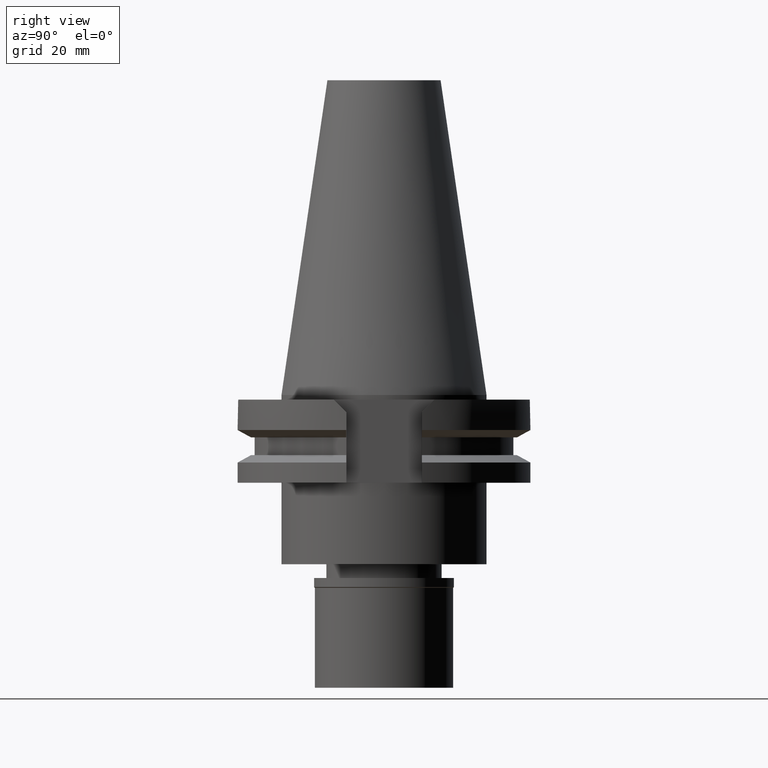
[diagram: clean part render]
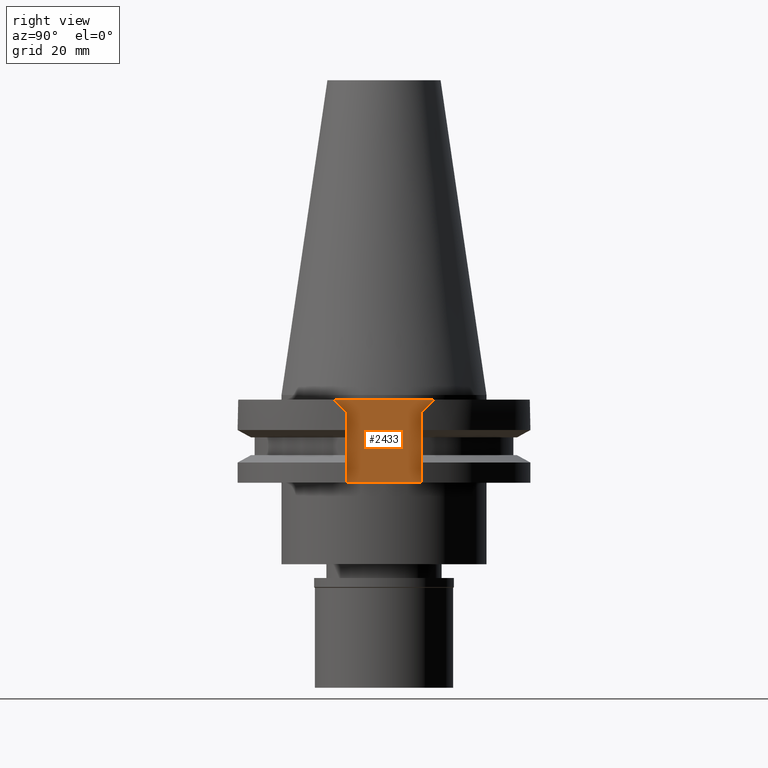
[diagram: same view with one face highlighted and labeled with its STEP entity id]
A machine part, right view. The second image highlights one B-rep face of the part: STEP entity #2433.
In plain terms, the highlighted planar face has unit normal (1, 0, 0).
Its self-contained STEP definition (entity closure, byte-faithful):
#55 = VERTEX_POINT ( 'NONE', #3035 ) ;
#57 = LINE ( 'NONE', #1242, #901 ) ;
#147 = VECTOR ( 'NONE', #952, 1000.000000000000000 ) ;
#253 = ORIENTED_EDGE ( 'NONE', *, *, #2285, .F. ) ;
#254 = EDGE_CURVE ( 'NONE', #970, #1608, #1385, .T. ) ;
#564 = EDGE_LOOP ( 'NONE', ( #1541, #1530, #1957, #253, #2066, #1280 ) ) ;
#637 = LINE ( 'NONE', #2581, #1485 ) ;
#702 = VERTEX_POINT ( 'NONE', #3116 ) ;
#799 = LINE ( 'NONE', #1304, #1479 ) ;
#825 = VERTEX_POINT ( 'NONE', #1554 ) ;
#901 = VECTOR ( 'NONE', #2189, 1000.000000000000114 ) ;
#929 = AXIS2_PLACEMENT_3D ( 'NONE', #2748, #1329, #1558 ) ;
#931 = DIRECTION ( 'NONE',  ( 0.0000000000000000000, -1.000000000000000000, 0.0000000000000000000 ) ) ;
#952 = DIRECTION ( 'NONE',  ( 0.0000000000000000000, -1.000000000000000000, 0.0000000000000000000 ) ) ;
#970 = VERTEX_POINT ( 'NONE', #2568 ) ;
#1242 = CARTESIAN_POINT ( 'NONE',  ( 22.57000000000000028, 10.89000000000000057, -1.000000000000000000 ) ) ;
#1280 = ORIENTED_EDGE ( 'NONE', *, *, #254, .F. ) ;
#1304 = CARTESIAN_POINT ( 'NONE',  ( 22.57000000000000028, -8.189999999999999503, -3.700000000000000178 ) ) ;
#1329 = DIRECTION ( 'NONE',  ( 1.000000000000000000, 0.0000000000000000000, 0.0000000000000000000 ) ) ;
#1385 = LINE ( 'NONE', #3074, #147 ) ;
#1427 = VECTOR ( 'NONE', #931, 1000.000000000000000 ) ;
#1479 = VECTOR ( 'NONE', #2713, 1000.000000000000114 ) ;
#1485 = VECTOR ( 'NONE', #2073, 1000.000000000000000 ) ;
#1530 = ORIENTED_EDGE ( 'NONE', *, *, #1690, .F. ) ;
#1541 = ORIENTED_EDGE ( 'NONE', *, *, #2491, .F. ) ;
#1554 = CARTESIAN_POINT ( 'NONE',  ( 22.57000000000000028, 8.189999999999999503, -3.700000000000000178 ) ) ;
#1558 = DIRECTION ( 'NONE',  ( 0.0000000000000000000, 1.000000000000000000, 0.0000000000000000000 ) ) ;
#1608 = VERTEX_POINT ( 'NONE', #2003 ) ;
#1690 = EDGE_CURVE ( 'NONE', #2104, #825, #57, .T. ) ;
#1720 = DIRECTION ( 'NONE',  ( 0.0000000000000000000, 0.0000000000000000000, -1.000000000000000000 ) ) ;
#1943 = CARTESIAN_POINT ( 'NONE',  ( 22.57000000000000028, 10.89000000000000057, -1.000000000000000000 ) ) ;
#1957 = ORIENTED_EDGE ( 'NONE', *, *, #2384, .T. ) ;
#2003 = CARTESIAN_POINT ( 'NONE',  ( 22.57000000000000028, -8.189999999999999503, -19.05000000000000071 ) ) ;
#2013 = LINE ( 'NONE', #2122, #2992 ) ;
#2066 = ORIENTED_EDGE ( 'NONE', *, *, #2948, .F. ) ;
#2073 = DIRECTION ( 'NONE',  ( 0.0000000000000000000, 0.0000000000000000000, 1.000000000000000000 ) ) ;
#2093 = CARTESIAN_POINT ( 'NONE',  ( 22.57000000000000028, 10.89000000000000057, -1.000000000000000000 ) ) ;
#2104 = VERTEX_POINT ( 'NONE', #1943 ) ;
#2122 = CARTESIAN_POINT ( 'NONE',  ( 22.57000000000000028, 8.189999999999999503, -3.700000000000000178 ) ) ;
#2189 = DIRECTION ( 'NONE',  ( 0.0000000000000000000, -0.7071067811865474617, -0.7071067811865474617 ) ) ;
#2285 = EDGE_CURVE ( 'NONE', #55, #702, #799, .T. ) ;
#2384 = EDGE_CURVE ( 'NONE', #2104, #702, #2986, .T. ) ;
#2433 = ADVANCED_FACE ( 'NONE', ( #3002 ), #2827, .T. ) ;
#2491 = EDGE_CURVE ( 'NONE', #825, #970, #2013, .T. ) ;
#2568 = CARTESIAN_POINT ( 'NONE',  ( 22.57000000000000028, 8.189999999999999503, -19.05000000000000071 ) ) ;
#2581 = CARTESIAN_POINT ( 'NONE',  ( 22.57000000000000028, -8.189999999999999503, -19.05000000000000071 ) ) ;
#2713 = DIRECTION ( 'NONE',  ( 0.0000000000000000000, -0.7071067811865474617, 0.7071067811865474617 ) ) ;
#2748 = CARTESIAN_POINT ( 'NONE',  ( 22.57000000000000028, 0.0000000000000000000, 0.0000000000000000000 ) ) ;
#2827 = PLANE ( 'NONE',  #929 ) ;
#2948 = EDGE_CURVE ( 'NONE', #1608, #55, #637, .T. ) ;
#2986 = LINE ( 'NONE', #2093, #1427 ) ;
#2992 = VECTOR ( 'NONE', #1720, 1000.000000000000000 ) ;
#3002 = FACE_OUTER_BOUND ( 'NONE', #564, .T. ) ;
#3035 = CARTESIAN_POINT ( 'NONE',  ( 22.57000000000000028, -8.189999999999999503, -3.700000000000000178 ) ) ;
#3074 = CARTESIAN_POINT ( 'NONE',  ( 22.57000000000000028, 8.189999999999999503, -19.05000000000000071 ) ) ;
#3116 = CARTESIAN_POINT ( 'NONE',  ( 22.57000000000000028, -10.89000000000000057, -1.000000000000000000 ) ) ;